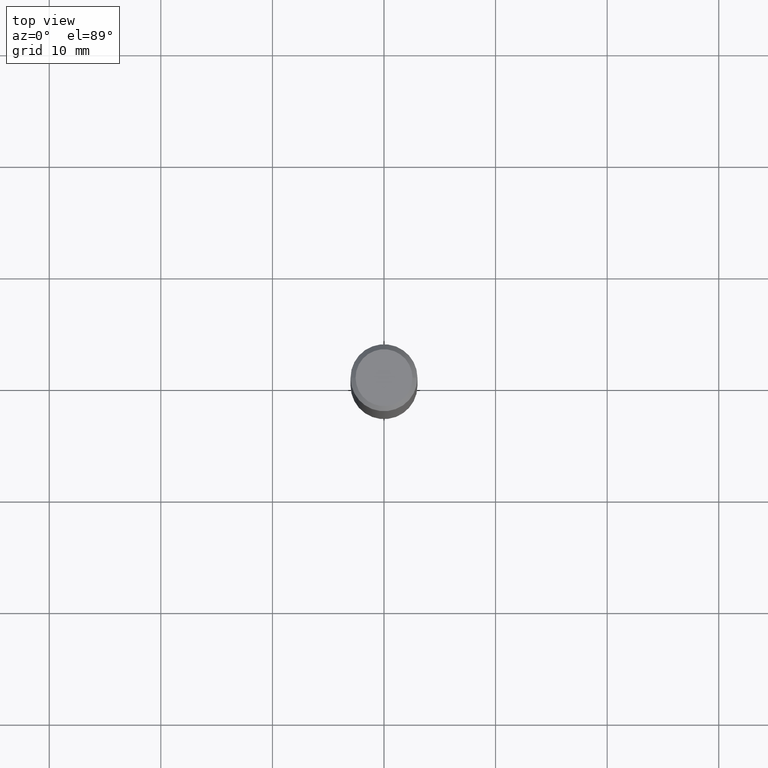
[diagram: clean part render]
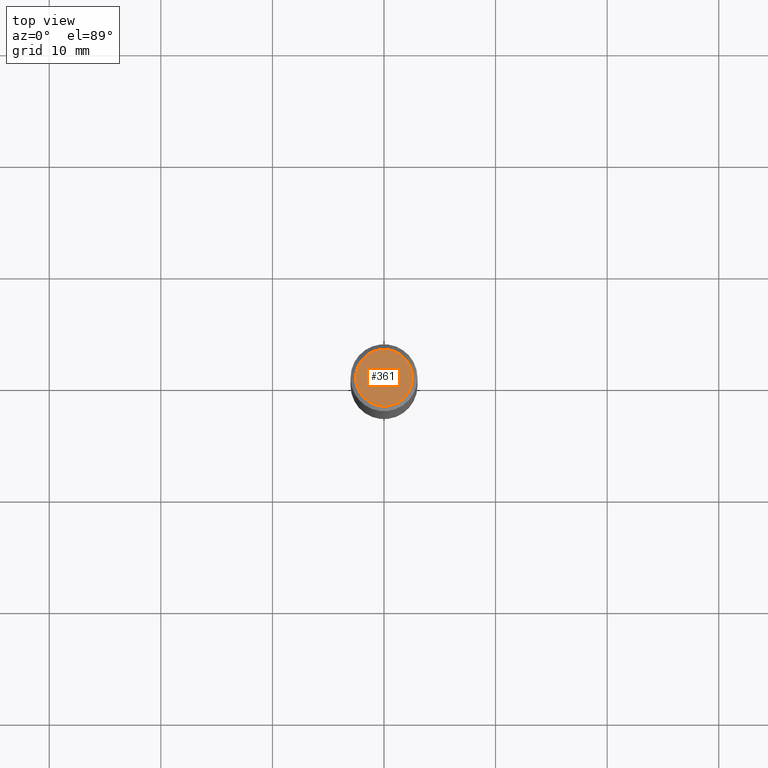
[diagram: same view with one face highlighted and labeled with its STEP entity id]
A machine part, top view. The second image highlights one B-rep face of the part: STEP entity #361.
In plain terms, the highlighted planar face has unit normal (0, -0, -1).
Its self-contained STEP definition (entity closure, byte-faithful):
#1 = CARTESIAN_POINT ( 'NONE',  ( 7.015701749847187307E-46, -1.001656274515824970E-31, -2.868857591682589212E-17 ) ) ;
#23 = AXIS2_PLACEMENT_3D ( 'NONE', #107, #213, #387 ) ;
#46 = AXIS2_PLACEMENT_3D ( 'NONE', #1, #450, #278 ) ;
#99 = PLANE ( 'NONE',  #23 ) ;
#107 = CARTESIAN_POINT ( 'NONE',  ( 3.507850874923593654E-46, -5.008281372579124849E-32, -1.434428795841294606E-17 ) ) ;
#127 = VERTEX_POINT ( 'NONE', #246 ) ;
#162 = ORIENTED_EDGE ( 'NONE', *, *, #259, .T. ) ;
#169 = DIRECTION ( 'NONE',  ( 1.000000000000000000, -6.982962677686266711E-15, 4.875668750515085695E-29 ) ) ;
#171 = VERTEX_POINT ( 'NONE', #378 ) ;
#173 = DIRECTION ( 'NONE',  ( -2.445468806185136597E-29, 3.491481338843145583E-15, 1.000000000000000000 ) ) ;
#174 = CIRCLE ( 'NONE', #434, 0.1003850000000000159 ) ;
#213 = DIRECTION ( 'NONE',  ( 2.438088387897960049E-29, -3.491481338843145188E-15, -1.000000000000000000 ) ) ;
#246 = CARTESIAN_POINT ( 'NONE',  ( 0.1003850000000000159, -7.803837484803601317E-16, -2.868857591682071522E-17 ) ) ;
#258 = CIRCLE ( 'NONE', #46, 0.1003850000000000159 ) ;
#259 = EDGE_CURVE ( 'NONE', #127, #171, #258, .T. ) ;
#278 = DIRECTION ( 'NONE',  ( 1.000000000000000000, -6.982962677686266711E-15, 4.875668750515085695E-29 ) ) ;
#292 = FACE_OUTER_BOUND ( 'NONE', #384, .T. ) ;
#318 = EDGE_CURVE ( 'NONE', #171, #127, #174, .T. ) ;
#361 = ADVANCED_FACE ( 'NONE', ( #292 ), #99, .F. ) ;
#378 = CARTESIAN_POINT ( 'NONE',  ( -0.1003850000000000159, 7.319105043583386689E-16, -2.868857591683090262E-17 ) ) ;
#384 = EDGE_LOOP ( 'NONE', ( #440, #162 ) ) ;
#387 = DIRECTION ( 'NONE',  ( -1.000000000000000000, 6.982962677686265922E-15, -4.876176775795935793E-29 ) ) ;
#426 = CARTESIAN_POINT ( 'NONE',  ( 7.015701749847187307E-46, -1.001656274515824970E-31, -2.868857591682589212E-17 ) ) ;
#434 = AXIS2_PLACEMENT_3D ( 'NONE', #426, #173, #169 ) ;
#440 = ORIENTED_EDGE ( 'NONE', *, *, #318, .T. ) ;
#450 = DIRECTION ( 'NONE',  ( -2.445468806185136597E-29, 3.491481338843145583E-15, 1.000000000000000000 ) ) ;